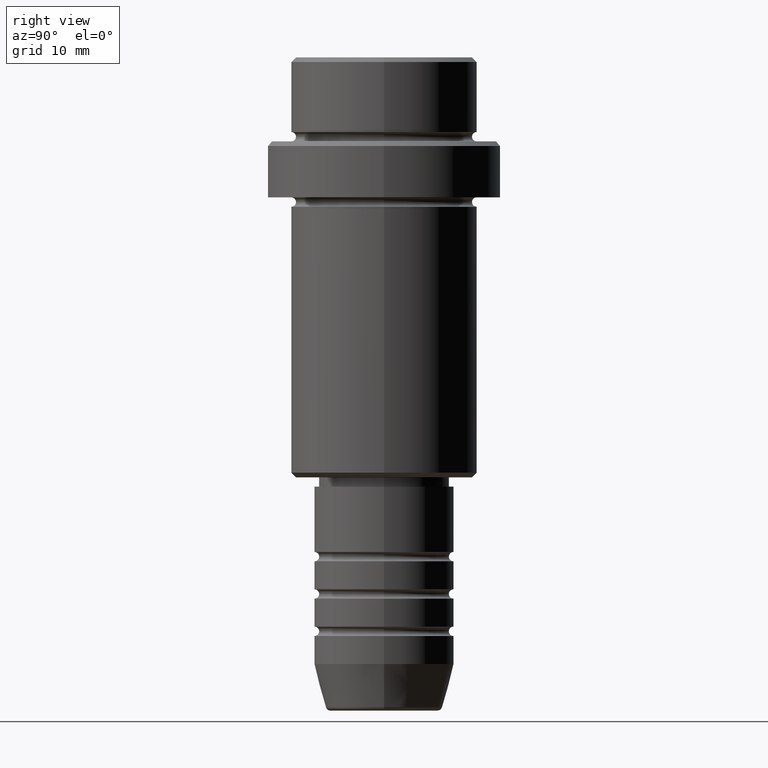
[diagram: clean part render]
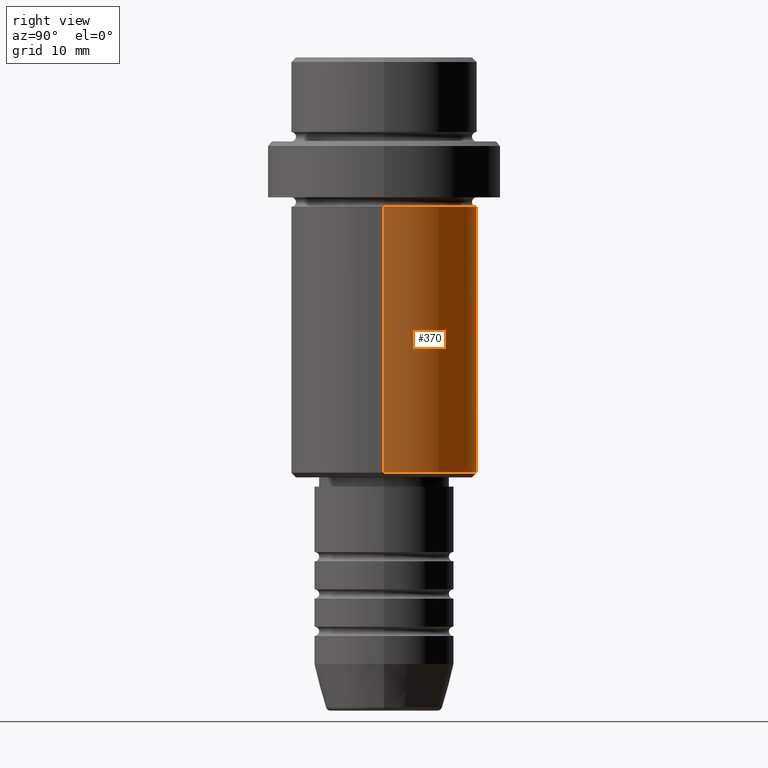
[diagram: same view with one face highlighted and labeled with its STEP entity id]
A machine part, right view. The second image highlights one B-rep face of the part: STEP entity #370.
In plain terms, the highlighted cylindrical surface (partial cylindrical patch) has radius 10 mm, axis along (-0, -0, 1).
Its self-contained STEP definition (entity closure, byte-faithful):
#25 = EDGE_CURVE ( 'NONE', #671, #1372, #848, .T. ) ;
#43 = CARTESIAN_POINT ( 'NONE',  ( 0.000000000000000000, 0.000000000000000000, 0.000000000000000000 ) ) ;
#57 = ORIENTED_EDGE ( 'NONE', *, *, #813, .F. ) ;
#87 = LINE ( 'NONE', #1292, #785 ) ;
#168 = AXIS2_PLACEMENT_3D ( 'NONE', #518, #958, #852 ) ;
#177 = DIRECTION ( 'NONE',  ( -1.000000000000000000, 0.000000000000000000, 0.000000000000000000 ) ) ;
#205 = VERTEX_POINT ( 'NONE', #1278 ) ;
#288 = CARTESIAN_POINT ( 'NONE',  ( -10.00000000000000000, 1.224646799147353256E-15, -44.50000000000000000 ) ) ;
#311 = DIRECTION ( 'NONE',  ( -0.000000000000000000, -0.000000000000000000, 1.000000000000000000 ) ) ;
#344 = ORIENTED_EDGE ( 'NONE', *, *, #870, .T. ) ;
#352 = ORIENTED_EDGE ( 'NONE', *, *, #25, .F. ) ;
#360 = AXIS2_PLACEMENT_3D ( 'NONE', #707, #1047, #177 ) ;
#370 = ADVANCED_FACE ( 'NONE', ( #695 ), #1357, .T. ) ;
#441 = DIRECTION ( 'NONE',  ( -0.000000000000000000, -0.000000000000000000, 1.000000000000000000 ) ) ;
#464 = VERTEX_POINT ( 'NONE', #288 ) ;
#476 = DIRECTION ( 'NONE',  ( 1.000000000000000000, 0.000000000000000000, 0.000000000000000000 ) ) ;
#518 = CARTESIAN_POINT ( 'NONE',  ( 0.000000000000000000, 0.000000000000000000, -16.00000000000000000 ) ) ;
#641 = AXIS2_PLACEMENT_3D ( 'NONE', #43, #792, #476 ) ;
#671 = VERTEX_POINT ( 'NONE', #1345 ) ;
#689 = CIRCLE ( 'NONE', #360, 10.00000000000000000 ) ;
#695 = FACE_OUTER_BOUND ( 'NONE', #890, .T. ) ;
#707 = CARTESIAN_POINT ( 'NONE',  ( 0.000000000000000000, 0.000000000000000000, -44.50000000000000000 ) ) ;
#785 = VECTOR ( 'NONE', #311, 1000.000000000000000 ) ;
#792 = DIRECTION ( 'NONE',  ( -0.000000000000000000, -0.000000000000000000, 1.000000000000000000 ) ) ;
#801 = EDGE_CURVE ( 'NONE', #464, #1372, #87, .T. ) ;
#813 = EDGE_CURVE ( 'NONE', #205, #671, #1238, .T. ) ;
#848 = CIRCLE ( 'NONE', #168, 10.00000000000000000 ) ;
#852 = DIRECTION ( 'NONE',  ( 1.000000000000000000, 0.000000000000000000, 0.000000000000000000 ) ) ;
#870 = EDGE_CURVE ( 'NONE', #205, #464, #689, .T. ) ;
#890 = EDGE_LOOP ( 'NONE', ( #344, #1230, #352, #57 ) ) ;
#958 = DIRECTION ( 'NONE',  ( -0.000000000000000000, -0.000000000000000000, 1.000000000000000000 ) ) ;
#1010 = VECTOR ( 'NONE', #441, 1000.000000000000000 ) ;
#1047 = DIRECTION ( 'NONE',  ( -0.000000000000000000, -0.000000000000000000, 1.000000000000000000 ) ) ;
#1124 = CARTESIAN_POINT ( 'NONE',  ( 10.00000000000000000, 0.000000000000000000, 0.000000000000000000 ) ) ;
#1230 = ORIENTED_EDGE ( 'NONE', *, *, #801, .T. ) ;
#1238 = LINE ( 'NONE', #1124, #1010 ) ;
#1257 = CARTESIAN_POINT ( 'NONE',  ( -10.00000000000000000, 1.224646799147353256E-15, -16.00000000000000000 ) ) ;
#1278 = CARTESIAN_POINT ( 'NONE',  ( 10.00000000000000000, 0.000000000000000000, -44.50000000000000000 ) ) ;
#1292 = CARTESIAN_POINT ( 'NONE',  ( -10.00000000000000000, 1.224646799147353256E-15, 0.000000000000000000 ) ) ;
#1345 = CARTESIAN_POINT ( 'NONE',  ( 10.00000000000000000, 0.000000000000000000, -16.00000000000000000 ) ) ;
#1357 = CYLINDRICAL_SURFACE ( 'NONE', #641, 10.00000000000000000 ) ;
#1372 = VERTEX_POINT ( 'NONE', #1257 ) ;